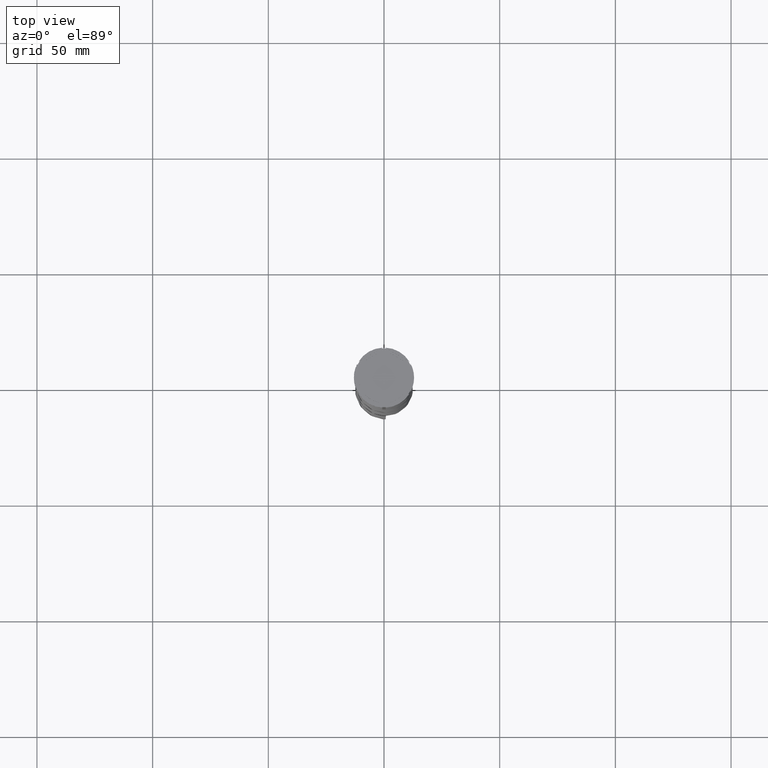
[diagram: clean part render]
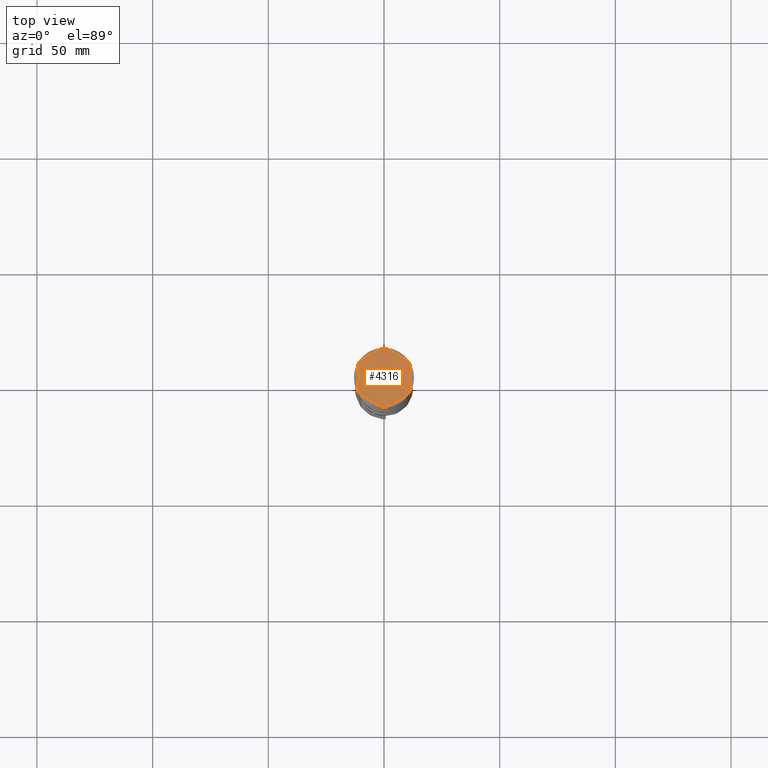
[diagram: same view with one face highlighted and labeled with its STEP entity id]
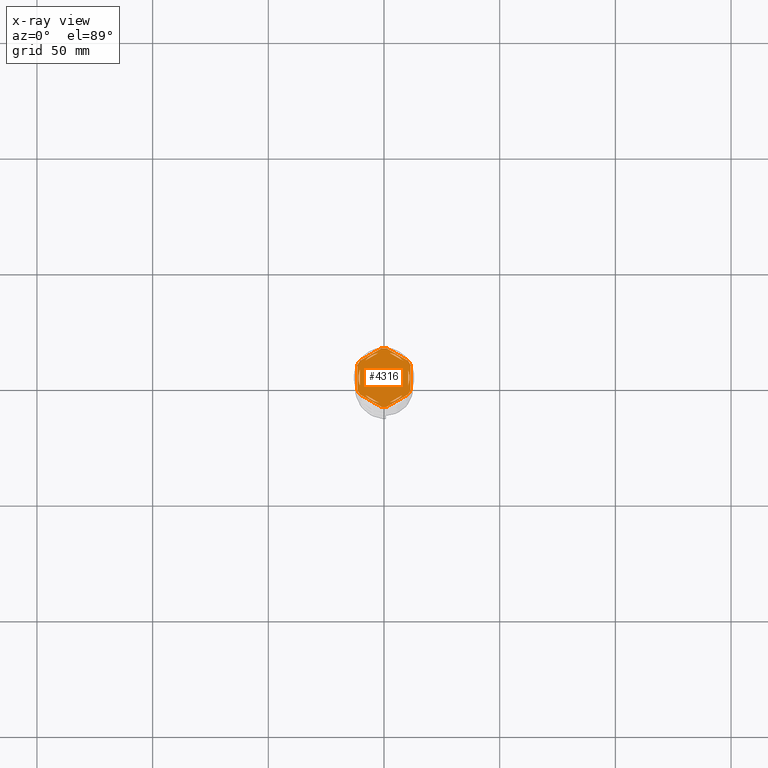
[diagram: x-ray of the same camera — body ghosted, the highlighted face saturated]
A machine part, top view. The second image highlights one B-rep face of the part: STEP entity #4316.
The next image is the same camera in x-ray: the body ghosted, the highlighted face saturated — about 0% of this face is hidden behind the body in this view.
In plain terms, the highlighted planar face has unit normal (0, 0, 1).
Its self-contained STEP definition (entity closure, byte-faithful):
#16 = VECTOR ( 'NONE', #402, 1000.000000000000000 ) ;
#31 = VERTEX_POINT ( 'NONE', #4410 ) ;
#45 = ORIENTED_EDGE ( 'NONE', *, *, #1381, .F. ) ;
#99 = FACE_BOUND ( 'NONE', #3085, .T. ) ;
#138 = DIRECTION ( 'NONE',  ( 0.000000000000000000, 0.000000000000000000, 1.000000000000000000 ) ) ;
#153 = VERTEX_POINT ( 'NONE', #1052 ) ;
#179 = CARTESIAN_POINT ( 'NONE',  ( 0.000000000000000000, 0.000000000000000000, -1.000000000000000000 ) ) ;
#199 = EDGE_CURVE ( 'NONE', #1020, #4422, #2730, .T. ) ;
#254 = ORIENTED_EDGE ( 'NONE', *, *, #1165, .F. ) ;
#255 = ORIENTED_EDGE ( 'NONE', *, *, #1421, .F. ) ;
#269 = DIRECTION ( 'NONE',  ( 1.000000000000000000, 0.000000000000000000, 0.000000000000000000 ) ) ;
#292 = ORIENTED_EDGE ( 'NONE', *, *, #4457, .F. ) ;
#304 = VERTEX_POINT ( 'NONE', #1133 ) ;
#307 = VECTOR ( 'NONE', #3840, 1000.000000000000000 ) ;
#313 = CARTESIAN_POINT ( 'NONE',  ( 0.000000000000000000, 0.000000000000000000, -1.000000000000000000 ) ) ;
#340 = DIRECTION ( 'NONE',  ( 1.000000000000000000, 0.000000000000000000, 0.000000000000000000 ) ) ;
#386 = CARTESIAN_POINT ( 'NONE',  ( -1.083095244168779780, -12.65373086058253982, -1.000000000000000000 ) ) ;
#402 = DIRECTION ( 'NONE',  ( 0.000000000000000000, 1.000000000000000000, 0.000000000000000000 ) ) ;
#410 = EDGE_CURVE ( 'NONE', #31, #531, #1074, .T. ) ;
#420 = LINE ( 'NONE', #1819, #307 ) ;
#447 = EDGE_CURVE ( 'NONE', #4062, #4067, #1025, .T. ) ;
#456 = VERTEX_POINT ( 'NONE', #1874 ) ;
#479 = CARTESIAN_POINT ( 'NONE',  ( 0.000000000000000000, 0.000000000000000000, -1.000000000000000000 ) ) ;
#488 = DIRECTION ( 'NONE',  ( -0.8660254037844387076, -0.4999999999999999445, 0.000000000000000000 ) ) ;
#495 = CARTESIAN_POINT ( 'NONE',  ( 0.000000000000000000, 0.000000000000000000, -1.000000000000000000 ) ) ;
#500 = CARTESIAN_POINT ( 'NONE',  ( -10.41690475583121689, 7.264853426459546348, -1.000000000000000000 ) ) ;
#508 = DIRECTION ( 'NONE',  ( 1.000000000000000000, 0.000000000000000000, 0.000000000000000000 ) ) ;
#509 = CARTESIAN_POINT ( 'NONE',  ( 0.000000000000000000, 0.000000000000000000, -1.000000000000000000 ) ) ;
#523 = CARTESIAN_POINT ( 'NONE',  ( 10.49999999999999467, 3.278719262151012170, -1.000000000000000888 ) ) ;
#526 = DIRECTION ( 'NONE',  ( 0.000000000000000000, 0.000000000000000000, 1.000000000000000000 ) ) ;
#530 = VERTEX_POINT ( 'NONE', #523 ) ;
#531 = VERTEX_POINT ( 'NONE', #500 ) ;
#533 = DIRECTION ( 'NONE',  ( 0.000000000000000000, 0.000000000000000000, 1.000000000000000000 ) ) ;
#551 = ORIENTED_EDGE ( 'NONE', *, *, #447, .F. ) ;
#552 = CARTESIAN_POINT ( 'NONE',  ( 1.083095244168774673, -12.65373086058253982, -1.000000000000000000 ) ) ;
#575 = CARTESIAN_POINT ( 'NONE',  ( -2.410545827099867200, 10.73262637081210613, -1.000000000000000888 ) ) ;
#673 = EDGE_CURVE ( 'NONE', #3471, #2667, #3145, .T. ) ;
#684 = CARTESIAN_POINT ( 'NONE',  ( 0.000000000000000000, 0.000000000000000000, -1.000000000000000000 ) ) ;
#699 = DIRECTION ( 'NONE',  ( 0.000000000000000000, 0.000000000000000000, 1.000000000000000000 ) ) ;
#716 = AXIS2_PLACEMENT_3D ( 'NONE', #2588, #533, #508 ) ;
#747 = VECTOR ( 'NONE', #2176, 1000.000000000000000 ) ;
#793 = EDGE_CURVE ( 'NONE', #3569, #2218, #3065, .T. ) ;
#794 = CARTESIAN_POINT ( 'NONE',  ( -11.50000000000000000, 6.639528095680691244, -1.000000000000000000 ) ) ;
#804 = FACE_BOUND ( 'NONE', #3736, .T. ) ;
#816 = EDGE_LOOP ( 'NONE', ( #254, #45 ) ) ;
#875 = DIRECTION ( 'NONE',  ( 0.000000000000000000, 0.000000000000000000, 1.000000000000000000 ) ) ;
#909 = LINE ( 'NONE', #2979, #2430 ) ;
#925 = VECTOR ( 'NONE', #3626, 1000.000000000000000 ) ;
#954 = EDGE_CURVE ( 'NONE', #2486, #3343, #420, .T. ) ;
#956 = CIRCLE ( 'NONE', #1101, 12.69999999999999929 ) ;
#971 = DIRECTION ( 'NONE',  ( -1.430775808321104180E-16, -1.000000000000000000, 0.000000000000000000 ) ) ;
#972 = CARTESIAN_POINT ( 'NONE',  ( -10.49999999999999822, 3.278719262151000624, -1.000000000000000888 ) ) ;
#1014 = EDGE_LOOP ( 'NONE', ( #2850, #3797, #4104, #1764, #3663, #1671, #4407, #3306, #3048, #4391, #4406, #3067 ) ) ;
#1020 = VERTEX_POINT ( 'NONE', #2858 ) ;
#1025 = CIRCLE ( 'NONE', #3511, 11.00000000000000000 ) ;
#1052 = CARTESIAN_POINT ( 'NONE',  ( 10.41690475583121867, -7.264853426459537467, -1.000000000000000000 ) ) ;
#1074 = LINE ( 'NONE', #3938, #1470 ) ;
#1087 = CARTESIAN_POINT ( 'NONE',  ( 10.41690475583121156, 7.264853426459550789, -1.000000000000000000 ) ) ;
#1093 = EDGE_CURVE ( 'NONE', #2916, #4062, #2145, .T. ) ;
#1097 = AXIS2_PLACEMENT_3D ( 'NONE', #2796, #3134, #2002 ) ;
#1101 = AXIS2_PLACEMENT_3D ( 'NONE', #3552, #1868, #3593 ) ;
#1128 = LINE ( 'NONE', #3573, #747 ) ;
#1133 = CARTESIAN_POINT ( 'NONE',  ( 2.410545827099865868, -10.73262637081210791, -1.000000000000000888 ) ) ;
#1145 = EDGE_CURVE ( 'NONE', #3569, #153, #909, .T. ) ;
#1159 = CARTESIAN_POINT ( 'NONE',  ( 0.000000000000000000, 0.000000000000000000, -1.000000000000000000 ) ) ;
#1165 = EDGE_CURVE ( 'NONE', #1402, #1718, #3798, .T. ) ;
#1194 = CARTESIAN_POINT ( 'NONE',  ( 11.49999999999999822, -5.388877434122996135, -1.000000000000000000 ) ) ;
#1209 = DIRECTION ( 'NONE',  ( 1.000000000000000000, 0.000000000000000000, 0.000000000000000000 ) ) ;
#1212 = VERTEX_POINT ( 'NONE', #2250 ) ;
#1254 = ORIENTED_EDGE ( 'NONE', *, *, #1093, .F. ) ;
#1325 = CIRCLE ( 'NONE', #2146, 11.00000000000000000 ) ;
#1340 = VECTOR ( 'NONE', #1746, 1000.000000000000227 ) ;
#1342 = LINE ( 'NONE', #3388, #4387 ) ;
#1350 = EDGE_CURVE ( 'NONE', #2486, #456, #956, .T. ) ;
#1381 = EDGE_CURVE ( 'NONE', #1718, #1402, #1128, .T. ) ;
#1387 = ORIENTED_EDGE ( 'NONE', *, *, #199, .F. ) ;
#1391 = CARTESIAN_POINT ( 'NONE',  ( -11.50000000000000000, 5.388877434122992582, -1.000000000000000000 ) ) ;
#1402 = VERTEX_POINT ( 'NONE', #2884 ) ;
#1409 = CIRCLE ( 'NONE', #3580, 12.69999999999999929 ) ;
#1421 = EDGE_CURVE ( 'NONE', #4422, #1020, #1325, .T. ) ;
#1470 = VECTOR ( 'NONE', #2853, 1000.000000000000114 ) ;
#1483 = CIRCLE ( 'NONE', #4097, 11.00000000000000000 ) ;
#1494 = EDGE_CURVE ( 'NONE', #2823, #153, #2434, .T. ) ;
#1497 = VECTOR ( 'NONE', #971, 1000.000000000000000 ) ;
#1505 = LINE ( 'NONE', #794, #4305 ) ;
#1509 = DIRECTION ( 'NONE',  ( 0.000000000000000000, 0.000000000000000000, 1.000000000000000000 ) ) ;
#1515 = AXIS2_PLACEMENT_3D ( 'NONE', #2191, #2214, #3991 ) ;
#1518 = FACE_OUTER_BOUND ( 'NONE', #1014, .T. ) ;
#1551 = DIRECTION ( 'NONE',  ( 0.000000000000000000, -1.000000000000000000, 0.000000000000000000 ) ) ;
#1606 = DIRECTION ( 'NONE',  ( 1.000000000000000000, 1.243449787580175325E-14, 0.000000000000000000 ) ) ;
#1623 = EDGE_CURVE ( 'NONE', #1637, #531, #3873, .T. ) ;
#1637 = VERTEX_POINT ( 'NONE', #1391 ) ;
#1671 = ORIENTED_EDGE ( 'NONE', *, *, #1623, .F. ) ;
#1680 = CARTESIAN_POINT ( 'NONE',  ( 10.49999999999999467, -3.278719262151014835, -1.000000000000000888 ) ) ;
#1718 = VERTEX_POINT ( 'NONE', #4116 ) ;
#1746 = DIRECTION ( 'NONE',  ( 0.8660254037844387076, -0.4999999999999997780, 0.000000000000000000 ) ) ;
#1764 = ORIENTED_EDGE ( 'NONE', *, *, #1882, .F. ) ;
#1819 = CARTESIAN_POINT ( 'NONE',  ( 11.50000000000000000, 6.639528095680698350, -1.000000000000000000 ) ) ;
#1822 = EDGE_CURVE ( 'NONE', #2151, #1212, #1409, .T. ) ;
#1823 = EDGE_LOOP ( 'NONE', ( #551, #1254, #2255 ) ) ;
#1858 = CARTESIAN_POINT ( 'NONE',  ( -10.49999999999999822, 6.062177826491068622, -1.000000000000000888 ) ) ;
#1868 = DIRECTION ( 'NONE',  ( -0.000000000000000000, -0.000000000000000000, -1.000000000000000000 ) ) ;
#1874 = CARTESIAN_POINT ( 'NONE',  ( 11.49999999999999822, 5.388877434122992582, -1.000000000000000000 ) ) ;
#1882 = EDGE_CURVE ( 'NONE', #31, #3343, #1988, .T. ) ;
#1973 = DIRECTION ( 'NONE',  ( -0.000000000000000000, -0.000000000000000000, -1.000000000000000000 ) ) ;
#1988 = CIRCLE ( 'NONE', #4088, 12.69999999999999929 ) ;
#2002 = DIRECTION ( 'NONE',  ( 1.000000000000000000, 0.000000000000000000, 0.000000000000000000 ) ) ;
#2007 = CARTESIAN_POINT ( 'NONE',  ( -11.00000000000000000, 0.000000000000000000, -1.000000000000000000 ) ) ;
#2052 = DIRECTION ( 'NONE',  ( 1.000000000000000000, 0.000000000000000000, 0.000000000000000000 ) ) ;
#2063 = AXIS2_PLACEMENT_3D ( 'NONE', #3367, #3025, #269 ) ;
#2114 = AXIS2_PLACEMENT_3D ( 'NONE', #1159, #138, #1209 ) ;
#2140 = DIRECTION ( 'NONE',  ( 1.000000000000000000, 0.000000000000000000, 0.000000000000000000 ) ) ;
#2145 = LINE ( 'NONE', #1858, #16 ) ;
#2146 = AXIS2_PLACEMENT_3D ( 'NONE', #495, #875, #2713 ) ;
#2151 = VERTEX_POINT ( 'NONE', #4143 ) ;
#2176 = DIRECTION ( 'NONE',  ( -0.8660254037844384856, 0.5000000000000002220, 0.000000000000000000 ) ) ;
#2191 = CARTESIAN_POINT ( 'NONE',  ( 0.000000000000000000, 0.000000000000000000, -1.000000000000000000 ) ) ;
#2214 = DIRECTION ( 'NONE',  ( 0.000000000000000000, 0.000000000000000000, 1.000000000000000000 ) ) ;
#2218 = VERTEX_POINT ( 'NONE', #386 ) ;
#2235 = FACE_BOUND ( 'NONE', #816, .T. ) ;
#2250 = CARTESIAN_POINT ( 'NONE',  ( -11.50000000000000000, -5.388877434122992582, -1.000000000000000000 ) ) ;
#2255 = ORIENTED_EDGE ( 'NONE', *, *, #4463, .F. ) ;
#2277 = FACE_BOUND ( 'NONE', #2634, .T. ) ;
#2326 = LINE ( 'NONE', #4090, #1497 ) ;
#2369 = CARTESIAN_POINT ( 'NONE',  ( 10.49999999999999467, 6.062177826491072175, -1.000000000000000888 ) ) ;
#2380 = VERTEX_POINT ( 'NONE', #3058 ) ;
#2427 = ORIENTED_EDGE ( 'NONE', *, *, #4430, .F. ) ;
#2430 = VECTOR ( 'NONE', #2558, 1000.000000000000114 ) ;
#2434 = CIRCLE ( 'NONE', #4165, 12.69999999999999929 ) ;
#2486 = VERTEX_POINT ( 'NONE', #1087 ) ;
#2547 = FACE_BOUND ( 'NONE', #4145, .T. ) ;
#2558 = DIRECTION ( 'NONE',  ( 0.8660254037844385966, 0.4999999999999999445, 0.000000000000000000 ) ) ;
#2588 = CARTESIAN_POINT ( 'NONE',  ( 0.000000000000000000, 0.000000000000000000, -1.000000000000000000 ) ) ;
#2634 = EDGE_LOOP ( 'NONE', ( #2984, #2427 ) ) ;
#2663 = CARTESIAN_POINT ( 'NONE',  ( 0.000000000000000000, 0.000000000000000000, -1.000000000000000000 ) ) ;
#2667 = VERTEX_POINT ( 'NONE', #3554 ) ;
#2678 = EDGE_CURVE ( 'NONE', #2151, #2218, #3472, .T. ) ;
#2682 = CIRCLE ( 'NONE', #716, 11.00000000000000000 ) ;
#2713 = DIRECTION ( 'NONE',  ( 1.000000000000000000, 0.000000000000000000, 0.000000000000000000 ) ) ;
#2716 = EDGE_CURVE ( 'NONE', #1637, #1212, #1505, .T. ) ;
#2730 = LINE ( 'NONE', #2369, #3428 ) ;
#2796 = CARTESIAN_POINT ( 'NONE',  ( 0.000000000000000000, 0.000000000000000000, -1.000000000000000000 ) ) ;
#2823 = VERTEX_POINT ( 'NONE', #1194 ) ;
#2849 = AXIS2_PLACEMENT_3D ( 'NONE', #179, #526, #3348 ) ;
#2850 = ORIENTED_EDGE ( 'NONE', *, *, #3296, .T. ) ;
#2853 = DIRECTION ( 'NONE',  ( -0.8660254037844385966, -0.5000000000000001110, 0.000000000000000000 ) ) ;
#2858 = CARTESIAN_POINT ( 'NONE',  ( 2.410545827099861871, 10.73262637081210791, -1.000000000000000888 ) ) ;
#2884 = CARTESIAN_POINT ( 'NONE',  ( -8.089454172900133244, -7.453907108661111280, -1.000000000000000888 ) ) ;
#2916 = VERTEX_POINT ( 'NONE', #3914 ) ;
#2921 = CARTESIAN_POINT ( 'NONE',  ( 1.083095244168781557, 12.65373086058254160, -1.000000000000000000 ) ) ;
#2929 = EDGE_CURVE ( 'NONE', #3489, #530, #1483, .T. ) ;
#2944 = PLANE ( 'NONE',  #1515 ) ;
#2965 = CARTESIAN_POINT ( 'NONE',  ( -1.734723475976807094E-15, 12.12435565298214080, -1.000000000000000888 ) ) ;
#2979 = CARTESIAN_POINT ( 'NONE',  ( 5.612359739892467248E-18, -13.27905619136138959, -1.000000000000000000 ) ) ;
#2984 = ORIENTED_EDGE ( 'NONE', *, *, #673, .F. ) ;
#3025 = DIRECTION ( 'NONE',  ( 0.000000000000000000, 0.000000000000000000, 1.000000000000000000 ) ) ;
#3048 = ORIENTED_EDGE ( 'NONE', *, *, #2678, .T. ) ;
#3058 = CARTESIAN_POINT ( 'NONE',  ( 8.089454172900135021, -7.453907108661109504, -1.000000000000000888 ) ) ;
#3065 = CIRCLE ( 'NONE', #1097, 12.69999999999999929 ) ;
#3067 = ORIENTED_EDGE ( 'NONE', *, *, #1494, .F. ) ;
#3085 = EDGE_LOOP ( 'NONE', ( #255, #1387 ) ) ;
#3131 = DIRECTION ( 'NONE',  ( 0.8660254037844387076, -0.4999999999999999445, 0.000000000000000000 ) ) ;
#3134 = DIRECTION ( 'NONE',  ( -0.000000000000000000, -0.000000000000000000, -1.000000000000000000 ) ) ;
#3145 = CIRCLE ( 'NONE', #2063, 11.00000000000000000 ) ;
#3148 = CARTESIAN_POINT ( 'NONE',  ( -11.50000000000000000, -6.639528095680696573, -1.000000000000000000 ) ) ;
#3224 = LINE ( 'NONE', #2965, #925 ) ;
#3296 = EDGE_CURVE ( 'NONE', #2823, #456, #1342, .T. ) ;
#3306 = ORIENTED_EDGE ( 'NONE', *, *, #1822, .F. ) ;
#3310 = CARTESIAN_POINT ( 'NONE',  ( 0.000000000000000000, 0.000000000000000000, -1.000000000000000000 ) ) ;
#3313 = EDGE_CURVE ( 'NONE', #530, #3489, #2326, .T. ) ;
#3343 = VERTEX_POINT ( 'NONE', #2921 ) ;
#3348 = DIRECTION ( 'NONE',  ( 1.000000000000000000, 0.000000000000000000, 0.000000000000000000 ) ) ;
#3362 = DIRECTION ( 'NONE',  ( 1.306360520641008153E-16, 1.000000000000000000, 0.000000000000000000 ) ) ;
#3367 = CARTESIAN_POINT ( 'NONE',  ( 0.000000000000000000, 0.000000000000000000, -1.000000000000000000 ) ) ;
#3388 = CARTESIAN_POINT ( 'NONE',  ( 11.49999999999999822, -6.639528095680694797, -1.000000000000000000 ) ) ;
#3428 = VECTOR ( 'NONE', #3131, 999.9999999999998863 ) ;
#3440 = DIRECTION ( 'NONE',  ( -0.000000000000000000, -0.000000000000000000, -1.000000000000000000 ) ) ;
#3471 = VERTEX_POINT ( 'NONE', #575 ) ;
#3472 = LINE ( 'NONE', #3148, #1340 ) ;
#3487 = CIRCLE ( 'NONE', #2114, 11.00000000000000000 ) ;
#3489 = VERTEX_POINT ( 'NONE', #1680 ) ;
#3511 = AXIS2_PLACEMENT_3D ( 'NONE', #479, #1509, #2140 ) ;
#3516 = AXIS2_PLACEMENT_3D ( 'NONE', #684, #3440, #340 ) ;
#3552 = CARTESIAN_POINT ( 'NONE',  ( 0.000000000000000000, 0.000000000000000000, -1.000000000000000000 ) ) ;
#3554 = CARTESIAN_POINT ( 'NONE',  ( -8.089454172900135021, 7.453907108661106840, -1.000000000000000888 ) ) ;
#3569 = VERTEX_POINT ( 'NONE', #552 ) ;
#3573 = CARTESIAN_POINT ( 'NONE',  ( -10.49999999999999822, -6.062177826491068622, -1.000000000000000888 ) ) ;
#3580 = AXIS2_PLACEMENT_3D ( 'NONE', #509, #3696, #3627 ) ;
#3591 = ORIENTED_EDGE ( 'NONE', *, *, #2929, .F. ) ;
#3593 = DIRECTION ( 'NONE',  ( 1.000000000000000000, -1.776356839400250465E-14, 0.000000000000000000 ) ) ;
#3607 = CARTESIAN_POINT ( 'NONE',  ( -2.602085213965210642E-15, -12.12435565298214080, -1.000000000000000888 ) ) ;
#3626 = DIRECTION ( 'NONE',  ( 0.8660254037844385966, 0.5000000000000001110, -0.000000000000000000 ) ) ;
#3627 = DIRECTION ( 'NONE',  ( 1.000000000000000000, 7.105427357601001859E-15, 0.000000000000000000 ) ) ;
#3653 = CARTESIAN_POINT ( 'NONE',  ( 8.089454172900138573, 7.453907108661105063, -1.000000000000000888 ) ) ;
#3663 = ORIENTED_EDGE ( 'NONE', *, *, #410, .T. ) ;
#3696 = DIRECTION ( 'NONE',  ( -0.000000000000000000, -0.000000000000000000, -1.000000000000000000 ) ) ;
#3708 = ORIENTED_EDGE ( 'NONE', *, *, #3313, .F. ) ;
#3736 = EDGE_LOOP ( 'NONE', ( #3591, #3708 ) ) ;
#3797 = ORIENTED_EDGE ( 'NONE', *, *, #1350, .F. ) ;
#3798 = CIRCLE ( 'NONE', #2849, 11.00000000000000000 ) ;
#3840 = DIRECTION ( 'NONE',  ( -0.8660254037844388186, 0.4999999999999997224, 0.000000000000000000 ) ) ;
#3873 = CIRCLE ( 'NONE', #3516, 12.69999999999999929 ) ;
#3914 = CARTESIAN_POINT ( 'NONE',  ( -10.49999999999999822, -3.278719262151000624, -1.000000000000000888 ) ) ;
#3924 = FACE_BOUND ( 'NONE', #1823, .T. ) ;
#3938 = CARTESIAN_POINT ( 'NONE',  ( 0.000000000000000000, 13.27905619136138959, -1.000000000000000000 ) ) ;
#3991 = DIRECTION ( 'NONE',  ( 1.000000000000000000, 0.000000000000000000, -0.000000000000000000 ) ) ;
#4008 = ORIENTED_EDGE ( 'NONE', *, *, #4321, .F. ) ;
#4041 = DIRECTION ( 'NONE',  ( -0.000000000000000000, -0.000000000000000000, -1.000000000000000000 ) ) ;
#4052 = VECTOR ( 'NONE', #488, 999.9999999999998863 ) ;
#4062 = VERTEX_POINT ( 'NONE', #972 ) ;
#4067 = VERTEX_POINT ( 'NONE', #2007 ) ;
#4088 = AXIS2_PLACEMENT_3D ( 'NONE', #3310, #1973, #1606 ) ;
#4090 = CARTESIAN_POINT ( 'NONE',  ( 10.49999999999999289, -6.062177826491073063, -1.000000000000000888 ) ) ;
#4097 = AXIS2_PLACEMENT_3D ( 'NONE', #313, #699, #2052 ) ;
#4104 = ORIENTED_EDGE ( 'NONE', *, *, #954, .T. ) ;
#4116 = CARTESIAN_POINT ( 'NONE',  ( -2.410545827099876082, -10.73262637081210435, -1.000000000000000888 ) ) ;
#4143 = CARTESIAN_POINT ( 'NONE',  ( -10.41690475583121334, -7.264853426459548125, -1.000000000000000000 ) ) ;
#4145 = EDGE_LOOP ( 'NONE', ( #292, #4008 ) ) ;
#4165 = AXIS2_PLACEMENT_3D ( 'NONE', #2663, #4041, #4402 ) ;
#4267 = LINE ( 'NONE', #3607, #4052 ) ;
#4305 = VECTOR ( 'NONE', #1551, 1000.000000000000000 ) ;
#4316 = ADVANCED_FACE ( 'NONE', ( #99, #804, #2547, #2235, #3924, #2277, #1518 ), #2944, .T. ) ;
#4321 = EDGE_CURVE ( 'NONE', #2380, #304, #4267, .T. ) ;
#4387 = VECTOR ( 'NONE', #3362, 1000.000000000000000 ) ;
#4391 = ORIENTED_EDGE ( 'NONE', *, *, #793, .F. ) ;
#4402 = DIRECTION ( 'NONE',  ( 1.000000000000000000, 0.000000000000000000, 0.000000000000000000 ) ) ;
#4406 = ORIENTED_EDGE ( 'NONE', *, *, #1145, .T. ) ;
#4407 = ORIENTED_EDGE ( 'NONE', *, *, #2716, .T. ) ;
#4410 = CARTESIAN_POINT ( 'NONE',  ( -1.083095244168783333, 12.65373086058254160, -1.000000000000000000 ) ) ;
#4422 = VERTEX_POINT ( 'NONE', #3653 ) ;
#4430 = EDGE_CURVE ( 'NONE', #2667, #3471, #3224, .T. ) ;
#4457 = EDGE_CURVE ( 'NONE', #304, #2380, #3487, .T. ) ;
#4463 = EDGE_CURVE ( 'NONE', #4067, #2916, #2682, .T. ) ;